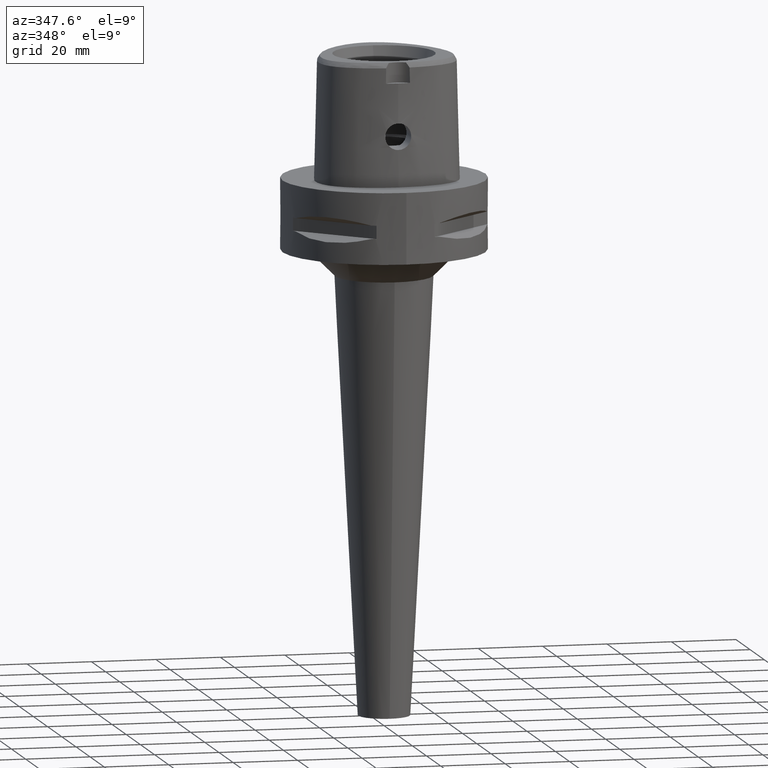
[diagram: clean part render]
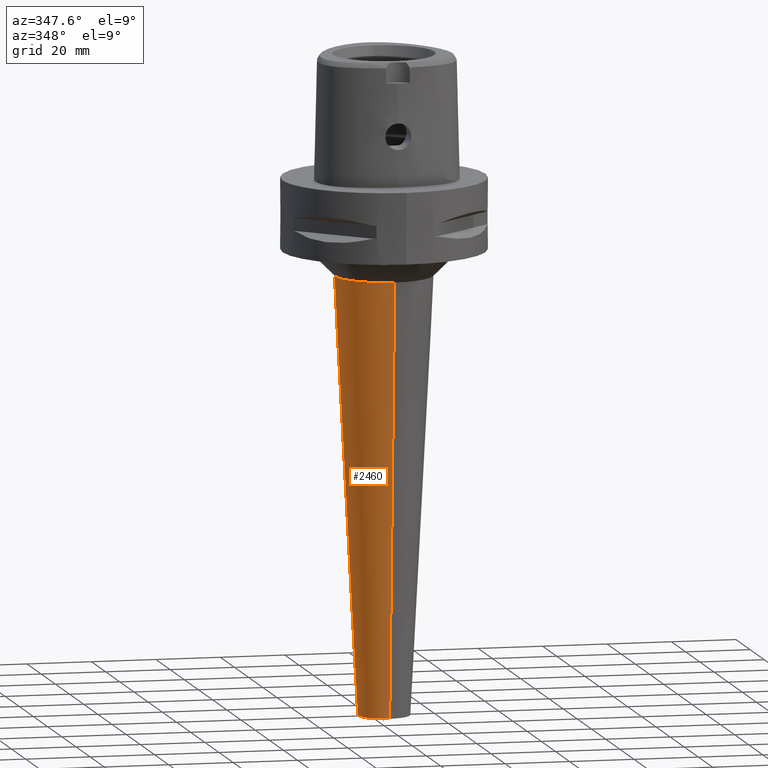
[diagram: same view with one face highlighted and labeled with its STEP entity id]
A machine part, auxiliary view. The second image highlights one B-rep face of the part: STEP entity #2460.
In plain terms, the highlighted conical surface has half-angle 3 deg.
Its self-contained STEP definition (entity closure, byte-faithful):
#524=CARTESIAN_POINT('',(0.E0,0.E0,-3.E1));
#525=DIRECTION('',(0.E0,0.E0,-1.E0));
#526=DIRECTION('',(0.E0,-1.E0,0.E0));
#527=AXIS2_PLACEMENT_3D('',#524,#525,#526);
#539=DIRECTION('',(0.E0,-5.233595624294E-2,-9.986295347546E-1));
#540=VECTOR('',#539,1.351852667097E2);
#541=CARTESIAN_POINT('',(0.E0,1.507505020321E1,-3.E1));
#542=LINE('',#541,#540);
#554=DIRECTION('',(0.E0,5.233595624294E-2,-9.986295347546E-1));
#555=VECTOR('',#554,1.351852667097E2);
#556=CARTESIAN_POINT('',(0.E0,-1.507505020321E1,-3.E1));
#557=LINE('',#556,#555);
#569=CARTESIAN_POINT('',(0.E0,0.E0,-1.65E2));
#570=DIRECTION('',(0.E0,0.E0,1.E0));
#571=DIRECTION('',(0.E0,1.E0,0.E0));
#572=AXIS2_PLACEMENT_3D('',#569,#570,#571);
#1522=CARTESIAN_POINT('',(0.E0,1.507505020321E1,-3.E1));
#1523=VERTEX_POINT('',#1522);
#1524=CARTESIAN_POINT('',(0.E0,-1.507505020321E1,-3.E1));
#1525=VERTEX_POINT('',#1524);
#1526=CARTESIAN_POINT('',(0.E0,8.000000000003E0,-1.65E2));
#1527=VERTEX_POINT('',#1526);
#1528=CARTESIAN_POINT('',(0.E0,-8.000000000005E0,-1.65E2));
#1529=VERTEX_POINT('',#1528);
#2448=CARTESIAN_POINT('',(0.E0,0.E0,-9.75E1));
#2449=DIRECTION('',(0.E0,0.E0,1.E0));
#2450=DIRECTION('',(0.E0,1.E0,0.E0));
#2451=AXIS2_PLACEMENT_3D('',#2448,#2449,#2450);
#2452=CONICAL_SURFACE('',#2451,1.153752510161E1,3.E0);
#2453=ORIENTED_EDGE('',*,*,#2438,.F.);
#2454=ORIENTED_EDGE('',*,*,#2415,.F.);
#2455=ORIENTED_EDGE('',*,*,#2442,.T.);
#2457=ORIENTED_EDGE('',*,*,#2456,.F.);
#2458=EDGE_LOOP('',(#2453,#2454,#2455,#2457));
#2459=FACE_OUTER_BOUND('',#2458,.F.);
#528=CIRCLE('',#527,1.507505020321E1);
#573=CIRCLE('',#572,8.000000000005E0);
#2415=EDGE_CURVE('',#1525,#1523,#528,.T.);
#2438=EDGE_CURVE('',#1523,#1527,#542,.T.);
#2442=EDGE_CURVE('',#1525,#1529,#557,.T.);
#2456=EDGE_CURVE('',#1527,#1529,#573,.T.);
#2460=ADVANCED_FACE('',(#2459),#2452,.T.);